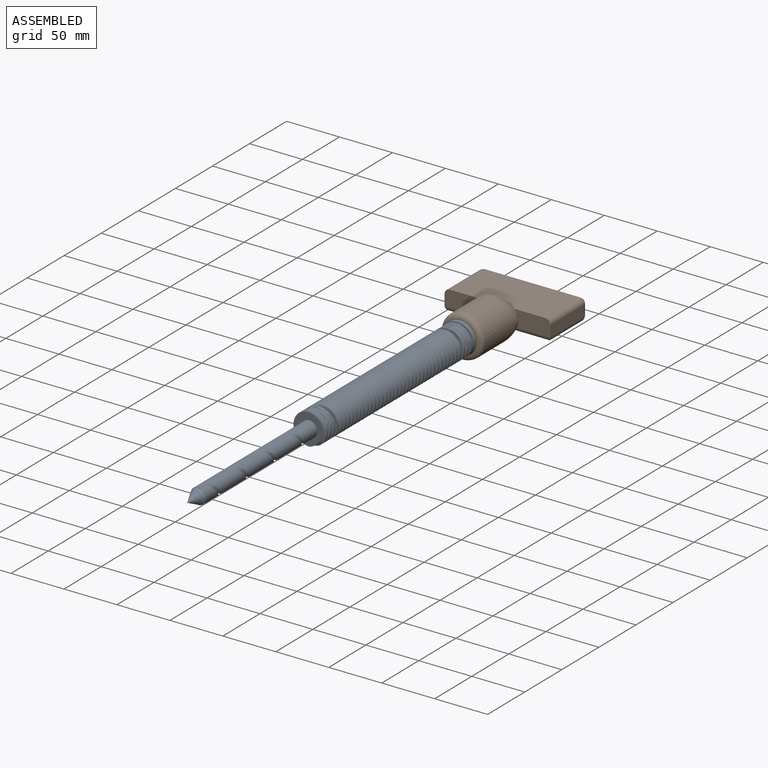
[diagram: assembled view]
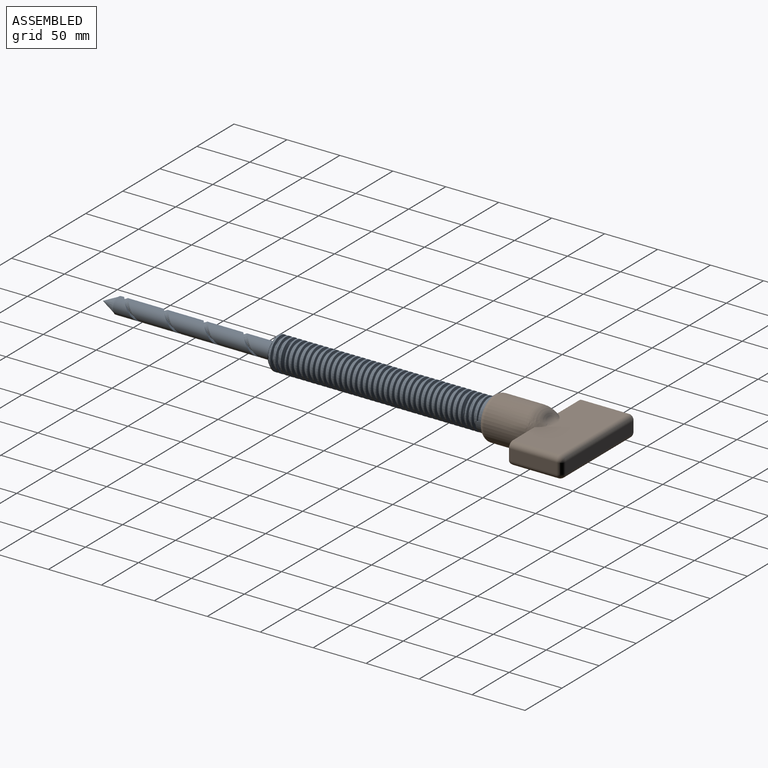
[diagram: assembled view, second angle]
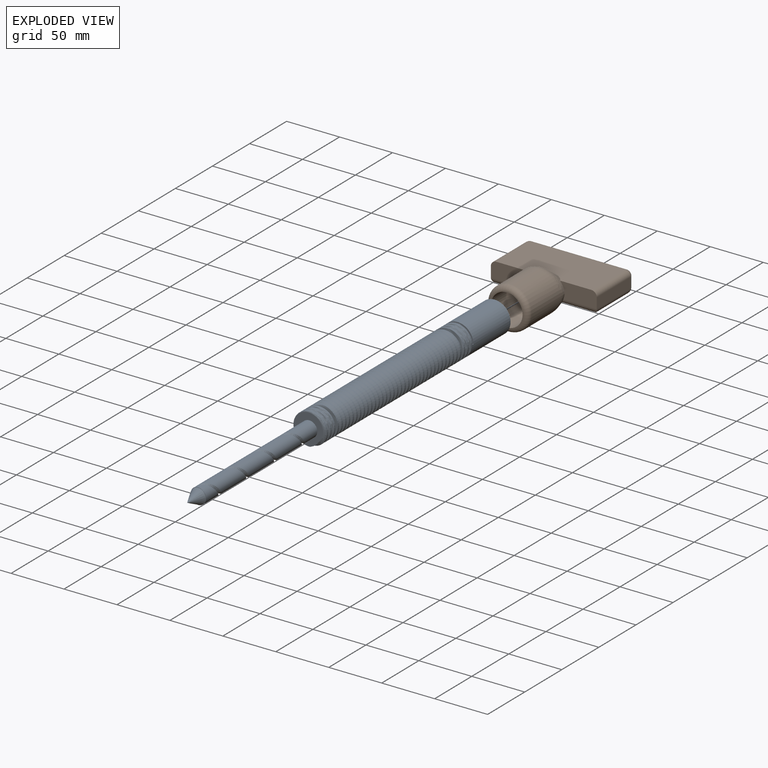
[diagram: exploded view]
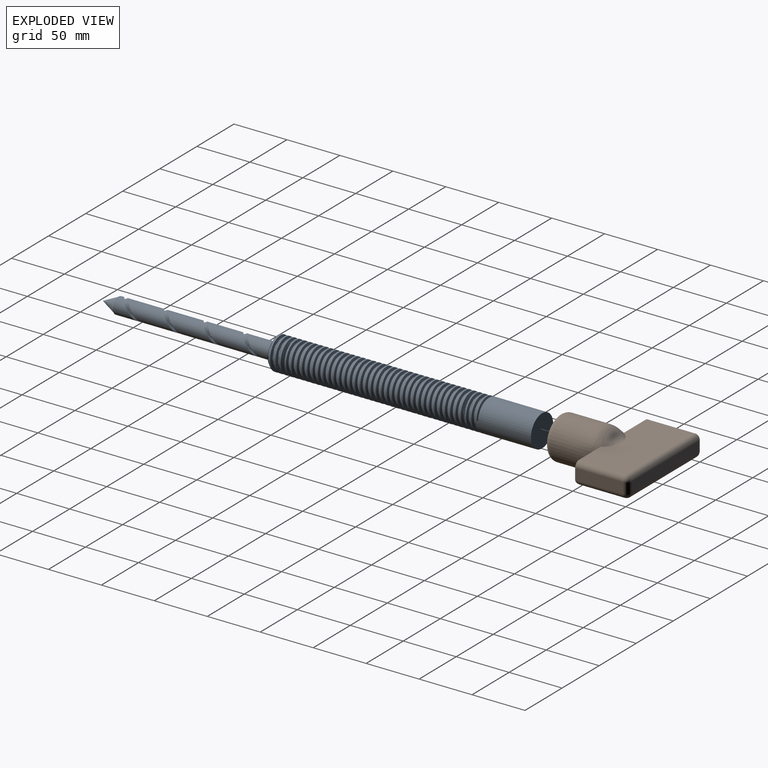
[diagram: exploded view, second angle]
ASSEMBLY  parts=2 mates=2
PART A: 54 faces, bbox 35.3x415.4x40.6 mm
  f0: cylinder r=15mm len=20.32mm, axis (0,1,0), area 22.9mm2, adj f1,f41,f44
  f1: cylinder r=15mm len=30mm, axis (0,1,0), area 146.8mm2, adj f0,f2,f43,f44
  f2: cylinder r=15mm len=30mm, axis (0,1,0), area 146.7mm2, adj f1,f3,f43,f44
  f3: cylinder r=15mm len=30mm, axis (0,1,0), area 146.7mm2, adj f2,f4,f43,f44
  f4: cylinder r=15mm len=30mm, axis (0,1,0), area 146.8mm2, adj f3,f5,f43,f44
  f5: cylinder r=15mm len=30mm, axis (0,1,0), area 146.7mm2, adj f4,f6,f43,f44
  f6: cylinder r=15mm len=30mm, axis (0,1,0), area 146.7mm2, adj f5,f7,f43,f44
  f7: cylinder r=15mm len=30mm, axis (0,1,0), area 146.7mm2, adj f6,f8,f43,f44
  f8: cylinder r=15mm len=30mm, axis (0,1,0), area 146.8mm2, adj f7,f9,f43,f44
  f9: cylinder r=15mm len=30mm, axis (0,1,0), area 146.8mm2, adj f8,f10,f43,f44
  f10: cylinder r=15mm len=30mm, axis (0,1,0), area 146.7mm2, adj f9,f11,f43,f44
  f11: cylinder r=15mm len=30mm, axis (0,1,0), area 146.7mm2, adj f10,f12,f43,f44
  f12: cylinder r=15mm len=30mm, axis (0,1,0), area 146.7mm2, adj f11,f13,f43,f44
  f13: cylinder r=15mm len=30mm, axis (0,1,0), area 146.7mm2, adj f12,f14,f43,f44
  f14: cylinder r=15mm len=30mm, axis (0,1,0), area 146.7mm2, adj f13,f15,f43,f44
  f15: cylinder r=15mm len=30mm, axis (0,1,0), area 146.8mm2, adj f14,f16,f43,f44
  f16: cylinder r=15mm len=30mm, axis (0,1,0), area 146.8mm2, adj f15,f17,f43,f44
  f17: cylinder r=15mm len=30mm, axis (0,1,0), area 146.7mm2, adj f16,f18,f43,f44
  f18: cylinder r=15mm len=30mm, axis (0,1,0), area 146.7mm2, adj f17,f19,f43,f44
  f19: cylinder r=15mm len=30mm, axis (0,1,0), area 146.7mm2, adj f18,f20,f43,f44
  f20: cylinder r=15mm len=30mm, axis (0,1,0), area 146.7mm2, adj f19,f21,f43,f44
  f21: cylinder r=15mm len=30mm, axis (0,1,0), area 146.7mm2, adj f20,f22,f43,f44
  f22: cylinder r=15mm len=30mm, axis (0,1,0), area 146.7mm2, adj f21,f23,f43,f44
  f23: cylinder r=15mm len=30mm, axis (0,1,0), area 146.8mm2, adj f22,f24,f43,f44
  f24: cylinder r=15mm len=30mm, axis (0,1,0), area 146.8mm2, adj f23,f25,f43,f44
  f25: cylinder r=15mm len=30mm, axis (0,1,0), area 146.7mm2, adj f24,f26,f43,f44
  f26: cylinder r=15mm len=30mm, axis (0,1,0), area 146.7mm2, adj f25,f27,f43,f44
  f27: cylinder r=15mm len=30mm, axis (0,1,0), area 146.7mm2, adj f26,f28,f43,f44
  f28: cylinder r=15mm len=30mm, axis (0,1,0), area 146.8mm2, adj f27,f29,f43,f44
  f29: cylinder r=15mm len=30mm, axis (0,1,0), area 146.7mm2, adj f28,f30,f43,f44
  f30: cylinder r=15mm len=30mm, axis (0,1,0), area 146.7mm2, adj f29,f31,f43,f44
  f31: cylinder r=15mm len=30mm, axis (0,1,0), area 146.8mm2, adj f30,f32,f43,f44
  f32: cylinder r=15mm len=30mm, axis (0,1,0), area 146.7mm2, adj f31,f33,f43,f44
  f33: cylinder r=15mm len=30mm, axis (0,1,0), area 146.7mm2, adj f32,f34,f43,f44
  f34: cylinder r=15mm len=30mm, axis (0,1,0), area 146.7mm2, adj f33,f35,f43,f44
  f35: cylinder r=15mm len=30mm, axis (0,1,0), area 146.8mm2, adj f34,f36,f43,f44
  f36: cylinder r=15mm len=30mm, axis (0,1,0), area 146.8mm2, adj f35,f37,f43,f44
  f37: cylinder r=15mm len=30mm, axis (0,1,0), area 146.7mm2, adj f36,f38,f43,f44
  f38: cylinder r=15mm len=30mm, axis (0,1,0), area 146.7mm2, adj f37,f39,f43,f44
  f39: cylinder r=15mm len=30mm, axis (0,1,0), area 146.7mm2, adj f38,f40,f43,f44
  f40: cylinder r=15mm len=55mm, axis (0,1,0), area 4850.7mm2, adj f39,f42,f43,f44,f45,f46
  f41: plane 29.77x28.64mm, normal (0,-1,0), area 450.6mm2, adj f0,f43,f44,f47
  f42: plane 2.6x1.22mm, normal (0,-0.05,1), area 2.3mm2, adj f40,f43,f44,f45
  f43: bspline ~206.21x36.37mm, area 13387.7mm2, adj f1,f2,f3,f4,f5,f6,f7,f8
  f44: bspline ~201.04x39.93mm, area 9156.4mm2, adj f0,f1,f2,f3,f4,f5,f6,f7
  f45: plane 29.03x15mm, normal (0,-1,0), area 39.8mm2, adj f40,f42,f43
  f46: plane 30x30mm, normal (0,1,0), area 706.9mm2, adj f40
  f47: cylinder r=7.5mm len=150mm, axis (0,1,0), area 6447mm2, adj f41,f48,f50,f52,f53
  f48: plane 15x15mm, normal (0,-1,0), area 9.7mm2, adj f47,f49,f52,f53
  f49: cone r=0mm half-angle=26.2deg, axis (0,1,0), area 370.7mm2, adj f48,f51,f52,f53
  f50: plane 2.6x2.31mm, normal (0,-0.62,-0.78), area 3.6mm2, adj f47,f52,f53
  f51: plane 2.27x2.03mm, normal (0,0.62,0.78), area 1.2mm2, adj f49,f52,f53
  f52: bspline ~150x17.26mm, area 503.3mm2, adj f47,f48,f49,f50,f51,f53
  f53: bspline ~152.29x14.99mm, area 854.3mm2, adj f47,f48,f49,f50,f51,f52
PART B: 30 faces, bbox 101.4x44.6x101.4 mm
  f0: plane 35.03x15.46mm, normal (0,0,-1), area 466.6mm2, adj f4,f5,f10,f11,f17,f27
  f1: plane 35.01x15.43mm, normal (0,0,-1), area 466.6mm2, adj f2,f5,f10,f11,f23,f24
  f2: plane 45x10mm, normal (1,0,0), area 450mm2, adj f1,f21,f23,f25
  f3: plane 90x10mm, normal (0,0,1), area 900mm2, adj f16,f19,f20,f21
  f4: plane 45x10mm, normal (-1,0,0), area 450mm2, adj f0,f17,f19,f28
  f5: plane 90.01x45.01mm, normal (0,-1,0), area 3841.4mm2, adj f0,f1,f8,f11,f16,f17,f23
  f6: plane 91.35x41.35mm, normal (0,1,0), area 3526.9mm2, adj f9,f10,f20,f24,f25,f27,f28
  f7: cylinder r=20mm len=41.02mm, axis (0,0,1), area 4795.7mm2, adj f10,f11,f14
  f8: cylinder r=10mm len=11.2mm, axis (-1,0,0), area 85mm2, adj f5,f11
  f9: cylinder r=10mm len=11.2mm, axis (1,0,0), area 85mm2, adj f6,f10
  f10: bspline ~90.04x35.72mm, area 727.1mm2, adj f0,f1,f6,f7,f9,f11,f24,f27
  f11: bspline ~90.04x35.74mm, area 679mm2, adj f0,f1,f5,f7,f8,f10
  f12: cylinder r=15mm len=30mm, axis (0,0,-1), area 1885mm2, adj f14,f15
  f13: plane 20x20mm, normal (0,0,-1), area 314.2mm2, adj f15
  f14: torus R=15mm, axis (0,0,-1), area 897.3mm2, adj f7,f12
  f15: torus R=10mm, axis (0,0,-1), area 650.6mm2, adj f12,f13
  f16: cylinder r=5mm len=90mm, axis (1,0,0), area 706.9mm2, adj f3,f5,f18,f22
  f17: cylinder r=5mm len=45mm, axis (0,0,1), area 353.4mm2, adj f0,f4,f5,f18
  f18: sphere r=5mm, area 39.3mm2, adj f16,f17,f19
  f19: cylinder r=5mm len=10mm, axis (0,-1,0), area 78.5mm2, adj f3,f4,f18,f29
  f20: cylinder r=5mm len=90mm, axis (-1,0,0), area 706.9mm2, adj f3,f6,f26,f29
  f21: cylinder r=5mm len=10mm, axis (0,1,0), area 78.5mm2, adj f2,f3,f22,f26
  f22: sphere r=5mm, area 39.3mm2, adj f16,f21,f23
  f23: cylinder r=5mm len=45mm, axis (0,0,-1), area 353.4mm2, adj f1,f2,f5,f22
  f24: cylinder r=5mm len=38.89mm, axis (1,0,0), area 256.8mm2, adj f1,f6,f10,f25
  f25: cylinder r=5mm len=45mm, axis (0,0,1), area 333.8mm2, adj f2,f6,f24,f26
  f26: sphere r=5mm, area 25mm2, adj f20,f21,f25
  f27: cylinder r=5mm len=38.89mm, axis (1,0,0), area 256.8mm2, adj f0,f6,f10,f28
  f28: cylinder r=5mm len=45mm, axis (0,0,-1), area 333.8mm2, adj f4,f6,f27,f29
  f29: sphere r=5mm, area 39.3mm2, adj f19,f20,f28
PLACE A rot(axis=(0,0.02,1),0deg) t=(271.02,350.8,55.35)mm
PLACE B rot(axis=(-1,0,0),90deg) t=(271.02,429.53,45.35)mm
MATE slider B.f15 <-> A.f0  axis (0,-1,0) through (271.02,364.53,55.35)mm
MATE fastened A.f0 <-> B.f12  axis (0,1,0) through (271.02,400.8,55.35)mm
